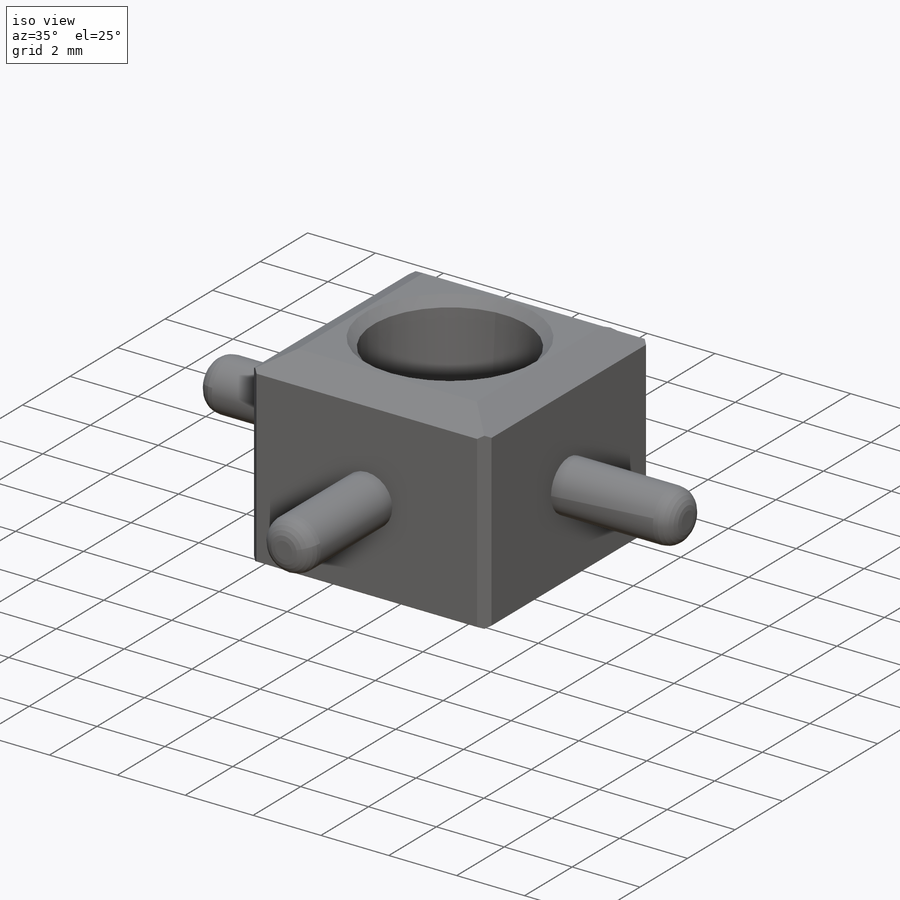
[diagram: iso view]
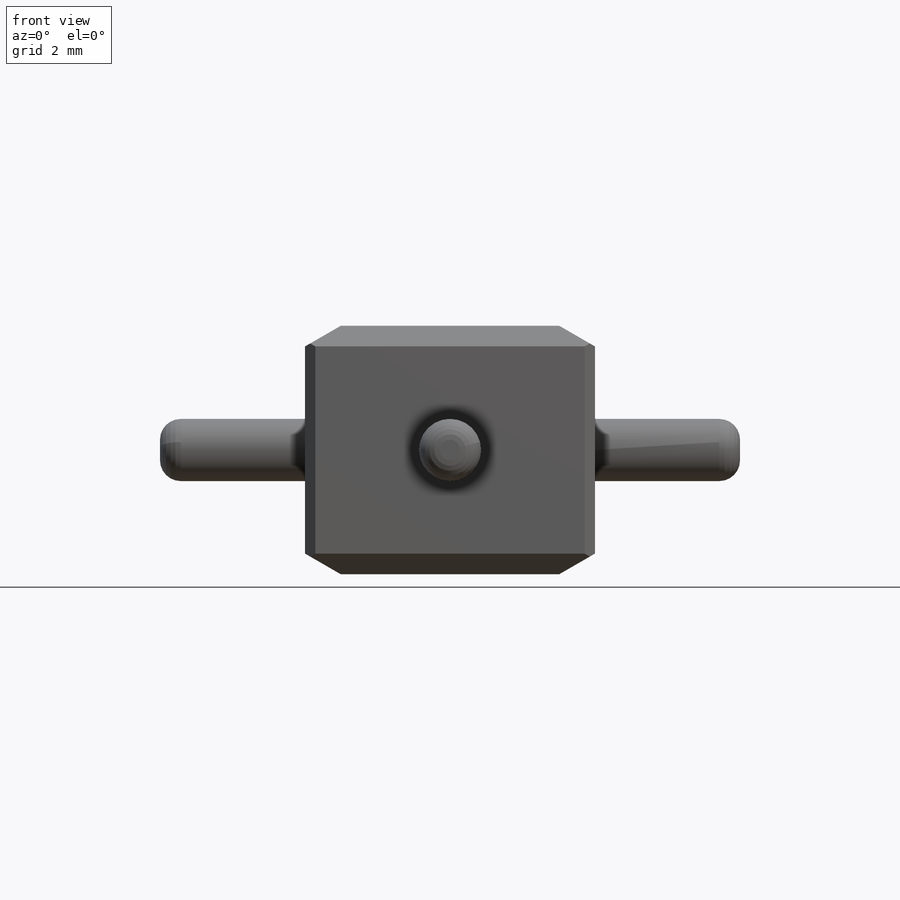
[diagram: front view]
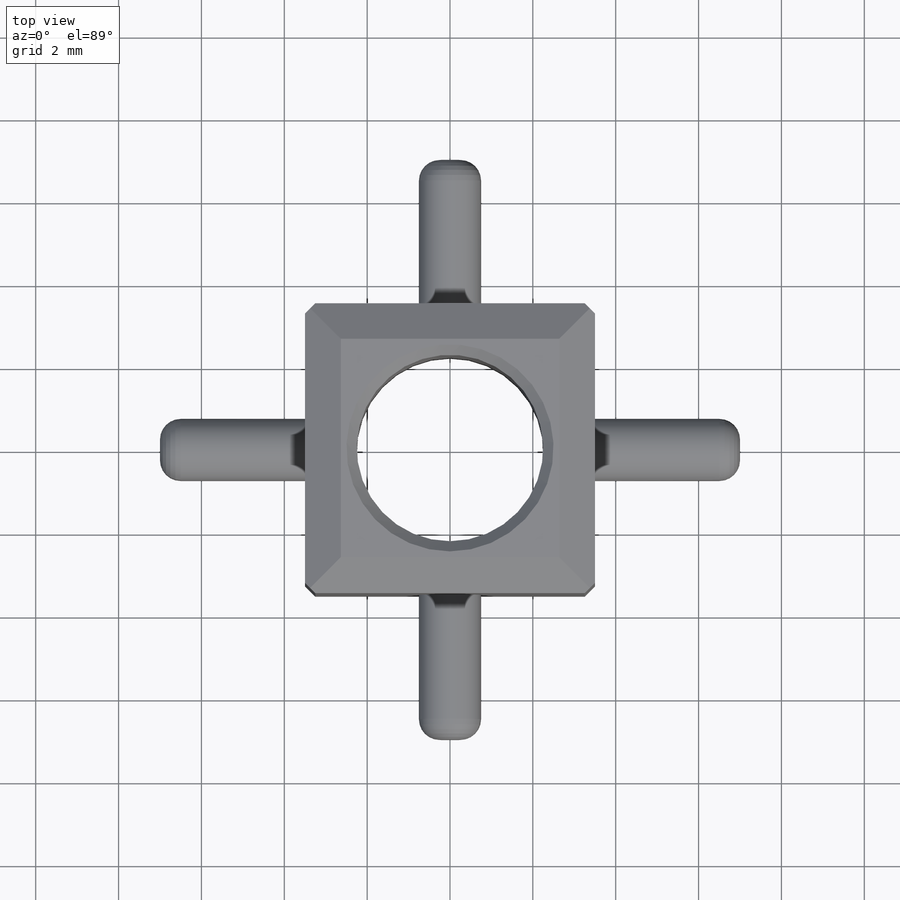
[diagram: top view]
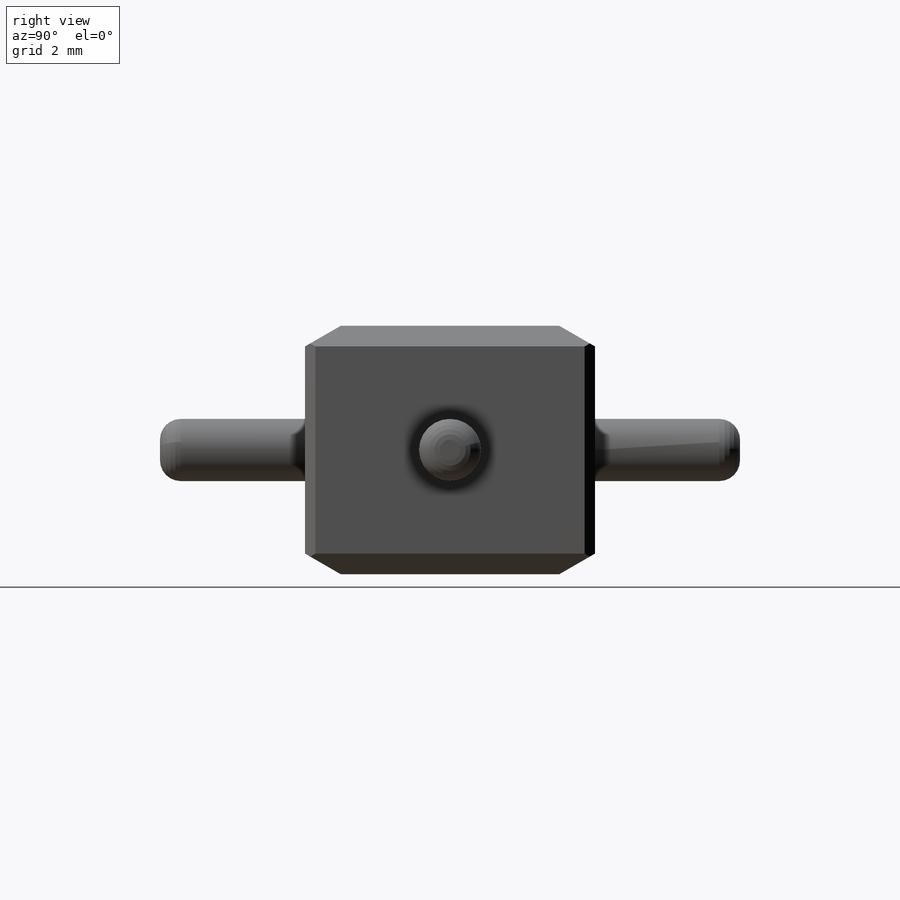
[diagram: right view]
SOLIDWORKS PART (.sldprt)
format: sldprt  version: not decoded by parser v0  size: 406,016 bytes
history: native  units: mm
features: sketch x3, extrude x2, chamfer x2, material x1, cut_extrude x1, fillet x1, pattern_circular x1 (+15 scaffold rows collapsed)
feature tree (26):
  scaffold x15  (default folders/planes/origin — collapsed)
  material  "Aluminum Bronze"
  sketch  "Sketch1"  dims[D1=7.0mm D2=7.0mm]
  extrude  "Extrude1"  Depth=6mm
  sketch  "Sketch2"  dims[D1=4.5mm]
  cut_extrude  "Cut-Extrude1"  Depth=6mm
  sketch  "Sketch3"  dims[D1=2.5mm]
  extrude  "Extrude2"  Depth=3.5mm
  fillet  "Fillet2"  Radius=0.5mm
  pattern_circular  "CirPattern1"  Count=4 Angle=360deg
  chamfer  "Chamfer1"  Distance=0.25mm Angle=45deg
  chamfer  "Chamfer2"  Distance=0.5mm Angle=60deg
decode coverage: 10 of 10 modeling features carry decoded parameters
note: suppression state not decoded; provenance and decode notes live in map.json
